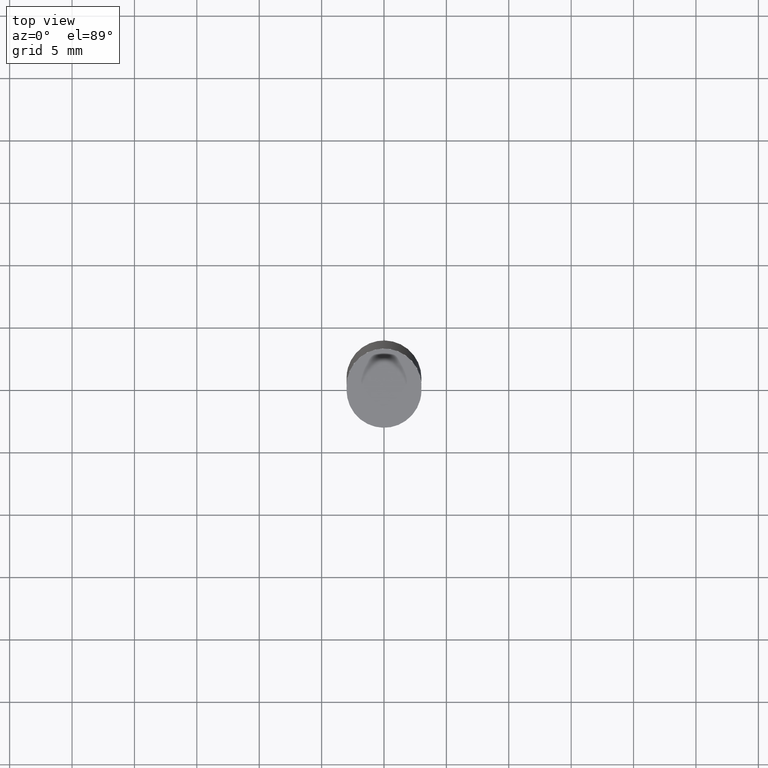
[diagram: clean part render]
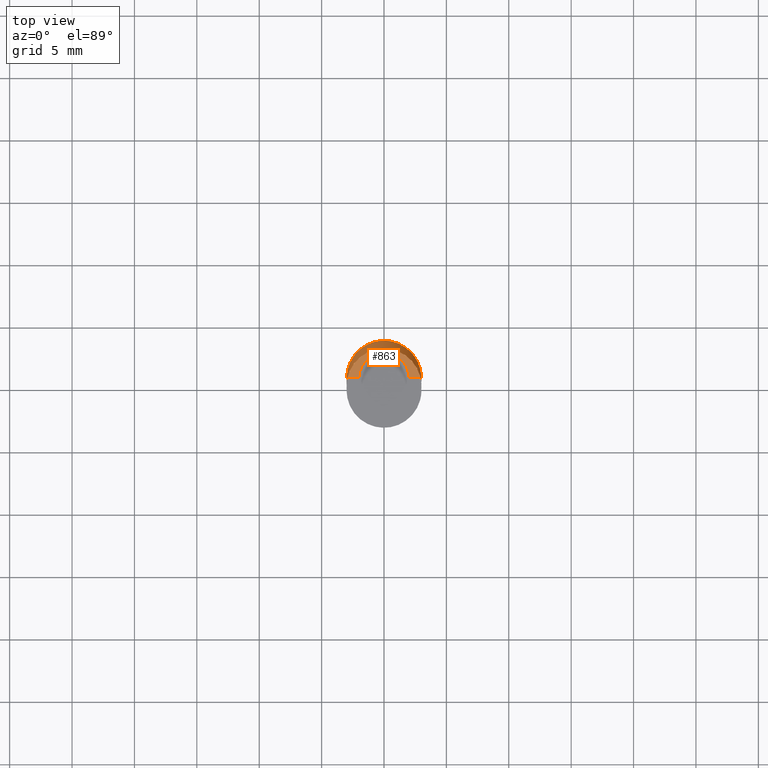
[diagram: same view with one face highlighted and labeled with its STEP entity id]
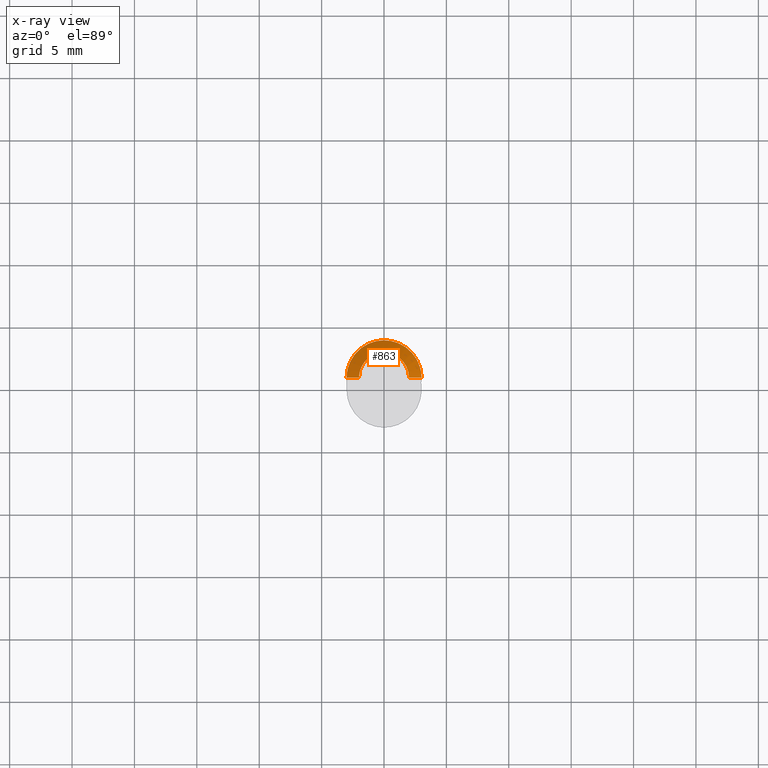
[diagram: x-ray of the same camera — body ghosted, the highlighted face saturated]
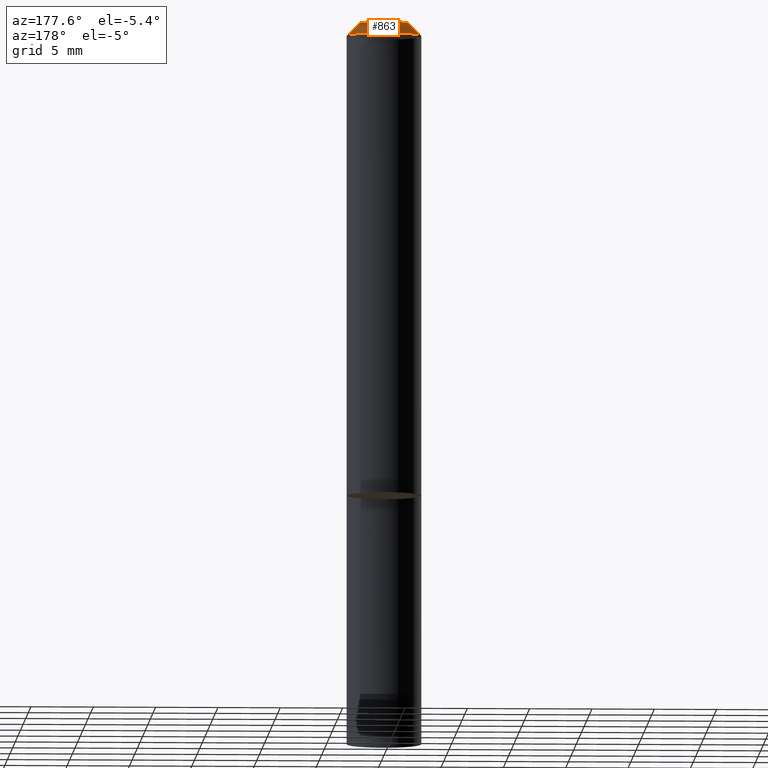
[diagram: same view with one face highlighted and labeled with its STEP entity id]
A machine part, top view. The second image highlights one B-rep face of the part: STEP entity #863.
The next image is the same camera in x-ray: the body ghosted, the highlighted face saturated — about 0% of this face is hidden behind the body in this view.
A second angle (auxiliary view) of the same face is appended — the face is thin or edge-on in the first view.
In plain terms, the highlighted face is a freeform B-spline surface patch.
Its self-contained STEP definition (entity closure, byte-faithful):
#678=CARTESIAN_POINT('',(3.0,0.0,37.0));
#679=CARTESIAN_POINT('',(3.0,3.0,37.0));
#680=CARTESIAN_POINT('',(0.0,3.0,37.0));
#681=CARTESIAN_POINT('',(-3.0,3.0,37.0));
#682=CARTESIAN_POINT('',(-3.0,0.0,37.0));
#683=CARTESIAN_POINT('',(2.0,0.0,38.0));
#684=CARTESIAN_POINT('',(2.0,2.0,38.0));
#685=CARTESIAN_POINT('',(0.0,2.0,38.0));
#686=CARTESIAN_POINT('',(-2.0,2.0,38.0));
#687=CARTESIAN_POINT('',(-2.0,0.0,38.0));
#844=(
BOUNDED_SURFACE()
B_SPLINE_SURFACE(1,2,(
(#678,#679,#680,#681,#682),
(#683,#684,#685,#686,#687)
), .UNSPECIFIED.,.F.,.F.,.F.)
B_SPLINE_SURFACE_WITH_KNOTS((2,2),(3,2,3),(
0.0,1.0),(
0.0,0.5,1.0), .UNSPECIFIED.)
GEOMETRIC_REPRESENTATION_ITEM()
RATIONAL_B_SPLINE_SURFACE(((1.0,0.707106781187,1.0,0.707106781187,1.0),
(1.0,0.707106781187,1.0,0.707106781187,1.0)
))
REPRESENTATION_ITEM('')
SURFACE()
);
#845=(
BOUNDED_CURVE()
B_SPLINE_CURVE(2,(#682,#681,#680,#679,#678),.UNSPECIFIED.,.F.,.F.)
B_SPLINE_CURVE_WITH_KNOTS((3,2,3),
(0.0,0.5,1.0),.UNSPECIFIED.)
CURVE()
GEOMETRIC_REPRESENTATION_ITEM()
RATIONAL_B_SPLINE_CURVE((1.0,0.707106781187,1.0,0.707106781187,1.0))
REPRESENTATION_ITEM('')
);
#846=(
BOUNDED_CURVE()
B_SPLINE_CURVE(1,(#678,#683),.UNSPECIFIED.,.F.,.F.)
B_SPLINE_CURVE_WITH_KNOTS((2,2),
(0.0,1.0),.UNSPECIFIED.)
CURVE()
GEOMETRIC_REPRESENTATION_ITEM()
RATIONAL_B_SPLINE_CURVE((1.0,1.0))
REPRESENTATION_ITEM('')
);
#847=(
BOUNDED_CURVE()
B_SPLINE_CURVE(2,(#683,#684,#685,#686,#687),.UNSPECIFIED.,.F.,.F.)
B_SPLINE_CURVE_WITH_KNOTS((3,2,3),
(0.0,0.5,1.0),.UNSPECIFIED.)
CURVE()
GEOMETRIC_REPRESENTATION_ITEM()
RATIONAL_B_SPLINE_CURVE((1.0,0.707106781187,1.0,0.707106781187,1.0))
REPRESENTATION_ITEM('')
);
#848=(
BOUNDED_CURVE()
B_SPLINE_CURVE(1,(#687,#682),.UNSPECIFIED.,.F.,.F.)
B_SPLINE_CURVE_WITH_KNOTS((2,2),
(0.0,1.0),.UNSPECIFIED.)
CURVE()
GEOMETRIC_REPRESENTATION_ITEM()
RATIONAL_B_SPLINE_CURVE((1.0,1.0))
REPRESENTATION_ITEM('')
);
#849=VERTEX_POINT('',#678);
#850=VERTEX_POINT('',#682);
#851=VERTEX_POINT('',#683);
#852=VERTEX_POINT('',#687);
#853=EDGE_CURVE('',#850,#849,#845,.T.);
#854=EDGE_CURVE('',#849,#851,#846,.T.);
#855=EDGE_CURVE('',#851,#852,#847,.T.);
#856=EDGE_CURVE('',#852,#850,#848,.T.);
#857=ORIENTED_EDGE('',*,*,#853,.T.);
#858=ORIENTED_EDGE('',*,*,#854,.T.);
#859=ORIENTED_EDGE('',*,*,#855,.T.);
#860=ORIENTED_EDGE('',*,*,#856,.T.);
#861=EDGE_LOOP('',(#857,#858,#859,#860));
#862=FACE_OUTER_BOUND('',#861,.T.);
#863=ADVANCED_FACE('',(#862),#844,.T.);